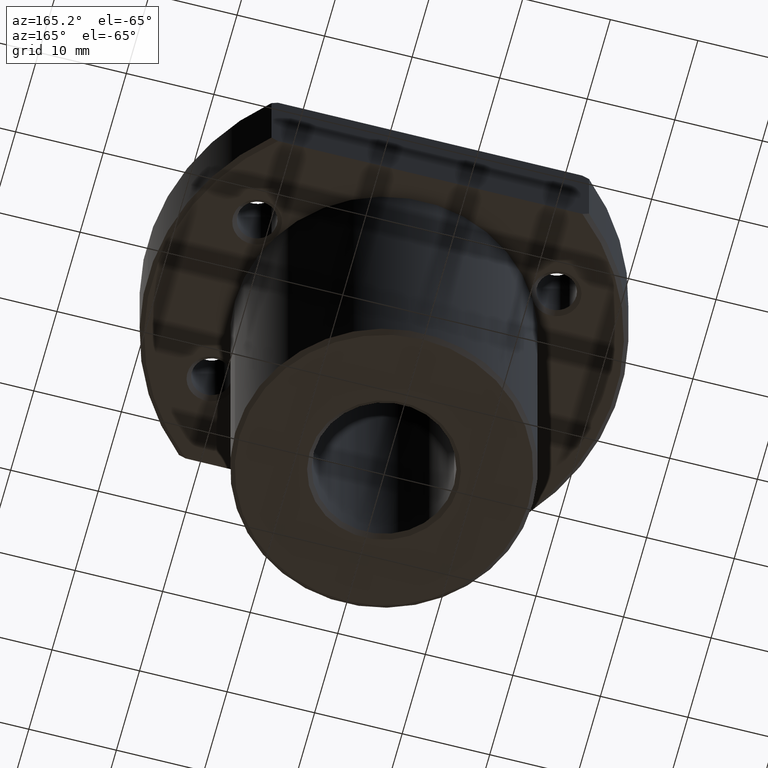
[diagram: clean part render]
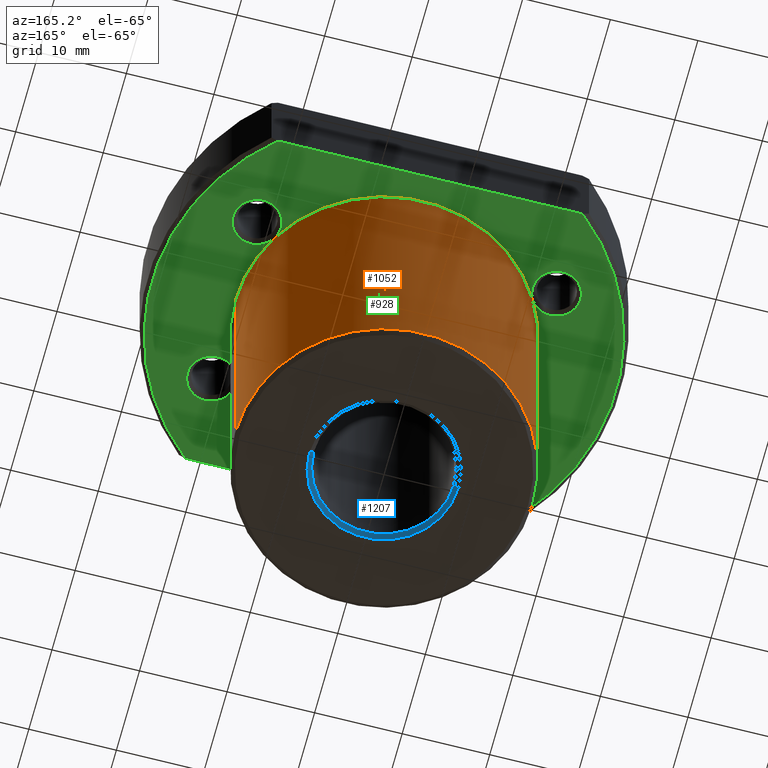
[diagram: same view with three faces highlighted in distinct colors, each labeled with its STEP entity id]
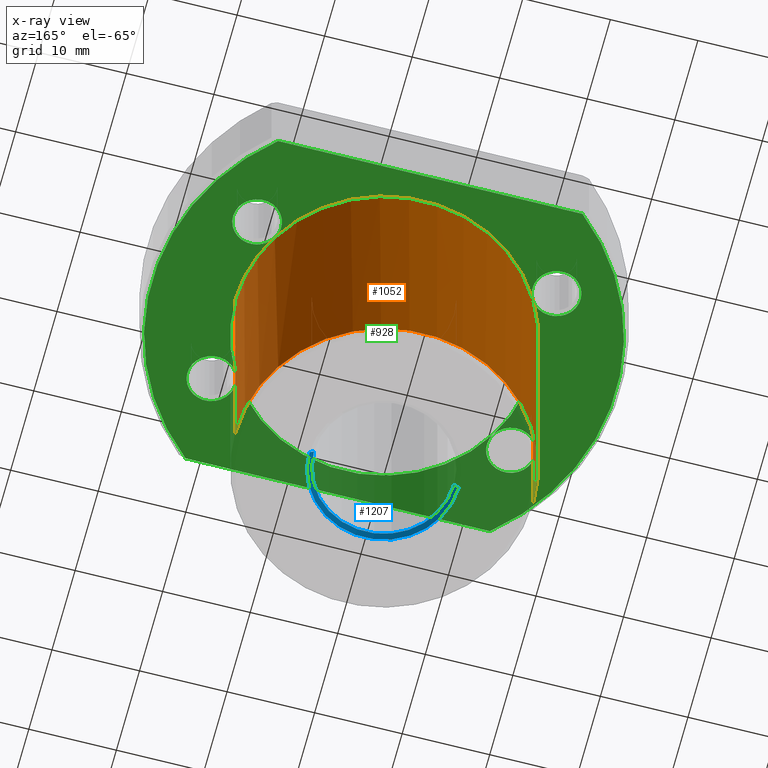
[diagram: x-ray of the same camera — body ghosted, the three highlighted faces saturated]
A machine part, auxiliary view with three faces highlighted in distinct colors.
The next image is the same camera in x-ray (body ghosted, the three faces saturated) — at least one of them is partly hidden behind the body in this view.
Their STEP definitions:

[orange] entity #1052 — the highlighted cylindrical surface (partial cylindrical patch) has radius 17 mm, axis along (0, 0, 1).
#880=AXIS2_PLACEMENT_3D('Circle Axis2P3D',#878,#879,$) ;
#904=AXIS2_PLACEMENT_3D('Circle Axis2P3D',#902,#903,$) ;
#909=AXIS2_PLACEMENT_3D('Circle Axis2P3D',#907,#908,$) ;
#1023=AXIS2_PLACEMENT_3D('Cylinder Axis2P3D',#1020,#1021,#1022) ;
#1041=AXIS2_PLACEMENT_3D('Circle Axis2P3D',#1039,#1040,$) ;
#57=CARTESIAN_POINT('Vertex',(-14.7224318643,8.5,35.)) ;
#210=CARTESIAN_POINT('Vertex',(14.7224318643,8.5,35.)) ;
#878=CARTESIAN_POINT('Axis2P3D Location',(0.,0.,35.)) ;
#882=CARTESIAN_POINT('Vertex',(-17.,2.0818308015E-015,35.)) ;
#899=CARTESIAN_POINT('Vertex',(17.,0.,35.)) ;
#902=CARTESIAN_POINT('Axis2P3D Location',(0.,0.,35.)) ;
#907=CARTESIAN_POINT('Axis2P3D Location',(0.,0.,35.)) ;
#1020=CARTESIAN_POINT('Axis2P3D Location',(0.,0.,17.5)) ;
#1025=CARTESIAN_POINT('Line Origine',(-17.,2.0818308015E-015,17.5)) ;
#1029=CARTESIAN_POINT('Vertex',(-17.,2.0818308015E-015,0.5)) ;
#1032=CARTESIAN_POINT('Line Origine',(17.,0.,17.5)) ;
#1036=CARTESIAN_POINT('Vertex',(17.,-4.163661603E-015,0.5)) ;
#1039=CARTESIAN_POINT('Axis2P3D Location',(0.,0.,0.5)) ;
#879=DIRECTION('Axis2P3D Direction',(0.,0.,1.)) ;
#903=DIRECTION('Axis2P3D Direction',(0.,0.,1.)) ;
#908=DIRECTION('Axis2P3D Direction',(0.,0.,1.)) ;
#1021=DIRECTION('Axis2P3D Direction',(0.,0.,1.)) ;
#1022=DIRECTION('Axis2P3D XDirection',(1.,0.,0.)) ;
#1026=DIRECTION('Vector Direction',(0.,0.,1.)) ;
#1033=DIRECTION('Vector Direction',(0.,0.,1.)) ;
#1040=DIRECTION('Axis2P3D Direction',(0.,0.,1.)) ;
#1027=VECTOR('Line Direction',#1026,1.) ;
#1034=VECTOR('Line Direction',#1033,1.) ;
#1045=ORIENTED_EDGE('',*,*,#1031,.T.) ;
#1046=ORIENTED_EDGE('',*,*,#884,.F.) ;
#1047=ORIENTED_EDGE('',*,*,#911,.F.) ;
#1048=ORIENTED_EDGE('',*,*,#906,.F.) ;
#1049=ORIENTED_EDGE('',*,*,#1038,.F.) ;
#1050=ORIENTED_EDGE('',*,*,#1043,.T.) ;
#1052=ADVANCED_FACE('',(#1051),#1024,.T.) ;
#881=CIRCLE('generated circle',#880,17.) ;
#905=CIRCLE('generated circle',#904,17.) ;
#910=CIRCLE('generated circle',#909,17.) ;
#1042=CIRCLE('generated circle',#1041,17.) ;
#1024=CYLINDRICAL_SURFACE('generated cylinder',#1023,17.) ;
#884=EDGE_CURVE('',#58,#883,#881,.T.) ;
#906=EDGE_CURVE('',#900,#211,#905,.T.) ;
#911=EDGE_CURVE('',#211,#58,#910,.T.) ;
#1031=EDGE_CURVE('',#1030,#883,#1028,.T.) ;
#1038=EDGE_CURVE('',#1037,#900,#1035,.T.) ;
#1043=EDGE_CURVE('',#1037,#1030,#1042,.T.) ;
#1044=EDGE_LOOP('',(#1045,#1046,#1047,#1048,#1049,#1050)) ;
#1051=FACE_OUTER_BOUND('',#1044,.T.) ;
#1028=LINE('Line',#1025,#1027) ;
#1035=LINE('Line',#1032,#1034) ;
#58=VERTEX_POINT('',#57) ;
#211=VERTEX_POINT('',#210) ;
#883=VERTEX_POINT('',#882) ;
#900=VERTEX_POINT('',#899) ;
#1030=VERTEX_POINT('',#1029) ;
#1037=VERTEX_POINT('',#1036) ;

[blue] entity #1207 — the highlighted conical surface has half-angle 45 deg.
#1148=AXIS2_PLACEMENT_3D('Circle Axis2P3D',#1146,#1147,$) ;
#1169=AXIS2_PLACEMENT_3D('Circle Axis2P3D',#1167,#1168,$) ;
#1189=AXIS2_PLACEMENT_3D('Cone Axis2P3D',#1186,#1187,#1188) ;
#1124=CARTESIAN_POINT('Vertex',(8.,-1.95937016612E-015,0.5)) ;
#1126=CARTESIAN_POINT('Vertex',(-8.,9.79685083058E-016,0.5)) ;
#1146=CARTESIAN_POINT('Axis2P3D Location',(0.,0.,0.5)) ;
#1167=CARTESIAN_POINT('Axis2P3D Location',(1.7763568394E-015,4.4408920985E-016,0.)) ;
#1171=CARTESIAN_POINT('Vertex',(-8.5,1.51718430416E-007,0.)) ;
#1173=CARTESIAN_POINT('Vertex',(8.5,-1.63774159165E-015,0.)) ;
#1186=CARTESIAN_POINT('Axis2P3D Location',(-1.04836317973E-016,0.,8.5)) ;
#1191=CARTESIAN_POINT('Line Origine',(-8.25,-4.4408920985E-016,0.25)) ;
#1196=CARTESIAN_POINT('Line Origine',(8.25,4.4408920985E-016,0.25)) ;
#1147=DIRECTION('Axis2P3D Direction',(0.,0.,1.)) ;
#1168=DIRECTION('Axis2P3D Direction',(0.,0.,1.)) ;
#1187=DIRECTION('Axis2P3D Direction',(-5.95641108643E-017,0.,-1.)) ;
#1188=DIRECTION('Axis2P3D XDirection',(-0.941921492107,0.335833147123,0.)) ;
#1192=DIRECTION('Vector Direction',(-0.707106781187,-1.25607396695E-015,-0.707106781187)) ;
#1197=DIRECTION('Vector Direction',(0.707106781187,1.25607396695E-015,-0.707106781187)) ;
#1193=VECTOR('Line Direction',#1192,1.) ;
#1198=VECTOR('Line Direction',#1197,1.) ;
#1202=ORIENTED_EDGE('',*,*,#1195,.T.) ;
#1203=ORIENTED_EDGE('',*,*,#1150,.T.) ;
#1204=ORIENTED_EDGE('',*,*,#1200,.F.) ;
#1205=ORIENTED_EDGE('',*,*,#1175,.F.) ;
#1207=ADVANCED_FACE('',(#1206),#1190,.F.) ;
#1149=CIRCLE('generated circle',#1148,8.) ;
#1170=CIRCLE('generated circle',#1169,8.5) ;
#1190=CONICAL_SURFACE('Cone',#1189,0.,0.785398163397) ;
#1150=EDGE_CURVE('',#1127,#1125,#1149,.T.) ;
#1175=EDGE_CURVE('',#1172,#1174,#1170,.T.) ;
#1195=EDGE_CURVE('',#1172,#1127,#1194,.F.) ;
#1200=EDGE_CURVE('',#1174,#1125,#1199,.F.) ;
#1201=EDGE_LOOP('',(#1202,#1203,#1204,#1205)) ;
#1206=FACE_OUTER_BOUND('',#1201,.T.) ;
#1194=LINE('Line',#1191,#1193) ;
#1199=LINE('Line',#1196,#1198) ;
#1125=VERTEX_POINT('',#1124) ;
#1127=VERTEX_POINT('',#1126) ;
#1172=VERTEX_POINT('',#1171) ;
#1174=VERTEX_POINT('',#1173) ;

[green] entity #928 — the highlighted planar face has unit normal (0, 0, 1).
#62=AXIS2_PLACEMENT_3D('Circle Axis2P3D',#60,#61,$) ;
#84=AXIS2_PLACEMENT_3D('Circle Axis2P3D',#82,#83,$) ;
#215=AXIS2_PLACEMENT_3D('Circle Axis2P3D',#213,#214,$) ;
#237=AXIS2_PLACEMENT_3D('Circle Axis2P3D',#235,#236,$) ;
#368=AXIS2_PLACEMENT_3D('Circle Axis2P3D',#366,#367,$) ;
#390=AXIS2_PLACEMENT_3D('Circle Axis2P3D',#388,#389,$) ;
#521=AXIS2_PLACEMENT_3D('Circle Axis2P3D',#519,#520,$) ;
#543=AXIS2_PLACEMENT_3D('Circle Axis2P3D',#541,#542,$) ;
#740=AXIS2_PLACEMENT_3D('Circle Axis2P3D',#738,#739,$) ;
#851=AXIS2_PLACEMENT_3D('Plane Axis2P3D',#848,#849,#850) ;
#855=AXIS2_PLACEMENT_3D('Circle Axis2P3D',#853,#854,$) ;
#880=AXIS2_PLACEMENT_3D('Circle Axis2P3D',#878,#879,$) ;
#887=AXIS2_PLACEMENT_3D('Circle Axis2P3D',#885,#886,$) ;
#892=AXIS2_PLACEMENT_3D('Circle Axis2P3D',#890,#891,$) ;
#897=AXIS2_PLACEMENT_3D('Circle Axis2P3D',#895,#896,$) ;
#904=AXIS2_PLACEMENT_3D('Circle Axis2P3D',#902,#903,$) ;
#909=AXIS2_PLACEMENT_3D('Circle Axis2P3D',#907,#908,$) ;
#41=CARTESIAN_POINT('Vertex',(-19.4855715803,11.2500000085,35.)) ;
#57=CARTESIAN_POINT('Vertex',(-14.7224318643,8.5,35.)) ;
#60=CARTESIAN_POINT('Axis2P3D Location',(-17.1040017247,9.875,35.)) ;
#82=CARTESIAN_POINT('Axis2P3D Location',(-17.1040017247,9.875,35.)) ;
#194=CARTESIAN_POINT('Vertex',(19.48557159,11.2499999915,35.)) ;
#210=CARTESIAN_POINT('Vertex',(14.7224318643,8.5,35.)) ;
#213=CARTESIAN_POINT('Axis2P3D Location',(17.1040017247,9.875,35.)) ;
#235=CARTESIAN_POINT('Axis2P3D Location',(17.1040017247,9.875,35.)) ;
#347=CARTESIAN_POINT('Vertex',(19.4855715803,-11.2500000085,35.)) ;
#363=CARTESIAN_POINT('Vertex',(14.7224318643,-8.5,35.)) ;
#366=CARTESIAN_POINT('Axis2P3D Location',(17.1040017247,-9.875,35.)) ;
#388=CARTESIAN_POINT('Axis2P3D Location',(17.1040017247,-9.875,35.)) ;
#500=CARTESIAN_POINT('Vertex',(-19.48557159,-11.2499999915,35.)) ;
#516=CARTESIAN_POINT('Vertex',(-14.7224318643,-8.5,35.)) ;
#519=CARTESIAN_POINT('Axis2P3D Location',(-17.1040017247,-9.875,35.)) ;
#541=CARTESIAN_POINT('Axis2P3D Location',(-17.1040017247,-9.875,35.)) ;
#727=CARTESIAN_POINT('Vertex',(17.3853386507,20.,35.)) ;
#735=CARTESIAN_POINT('Vertex',(17.3853386507,-20.,35.)) ;
#738=CARTESIAN_POINT('Axis2P3D Location',(-3.5527136788E-015,2.18640584506E-015,35.)) ;
#848=CARTESIAN_POINT('Axis2P3D Location',(0.,0.,35.)) ;
#853=CARTESIAN_POINT('Axis2P3D Location',(-7.1054273576E-015,-2.58813730639E-015,35.)) ;
#857=CARTESIAN_POINT('Vertex',(-17.3853386507,20.,35.)) ;
#859=CARTESIAN_POINT('Vertex',(-17.3853386507,-20.,35.)) ;
#862=CARTESIAN_POINT('Line Origine',(0.,20.,35.)) ;
#867=CARTESIAN_POINT('Line Origine',(-7.1054273576E-015,-20.,35.)) ;
#878=CARTESIAN_POINT('Axis2P3D Location',(0.,0.,35.)) ;
#882=CARTESIAN_POINT('Vertex',(-17.,2.0818308015E-015,35.)) ;
#885=CARTESIAN_POINT('Axis2P3D Location',(0.,0.,35.)) ;
#890=CARTESIAN_POINT('Axis2P3D Location',(0.,0.,35.)) ;
#895=CARTESIAN_POINT('Axis2P3D Location',(0.,0.,35.)) ;
#899=CARTESIAN_POINT('Vertex',(17.,0.,35.)) ;
#902=CARTESIAN_POINT('Axis2P3D Location',(0.,0.,35.)) ;
#907=CARTESIAN_POINT('Axis2P3D Location',(0.,0.,35.)) ;
#61=DIRECTION('Axis2P3D Direction',(1.18921396731E-013,9.42049825527E-014,1.)) ;
#83=DIRECTION('Axis2P3D Direction',(0.,0.,1.)) ;
#214=DIRECTION('Axis2P3D Direction',(2.23142310953E-014,-1.51387396639E-013,1.)) ;
#236=DIRECTION('Axis2P3D Direction',(0.,0.,1.)) ;
#367=DIRECTION('Axis2P3D Direction',(-1.20650606498E-013,-9.5574796399E-014,1.)) ;
#389=DIRECTION('Axis2P3D Direction',(1.53837014911E-015,2.6645352591E-015,1.)) ;
#520=DIRECTION('Axis2P3D Direction',(-2.23142310953E-014,1.51387396639E-013,1.)) ;
#542=DIRECTION('Axis2P3D Direction',(0.,0.,1.)) ;
#739=DIRECTION('Axis2P3D Direction',(2.73260510366E-015,-5.72219949474E-015,1.)) ;
#849=DIRECTION('Axis2P3D Direction',(0.,0.,1.)) ;
#850=DIRECTION('Axis2P3D XDirection',(1.,0.,0.)) ;
#854=DIRECTION('Axis2P3D Direction',(0.,0.,1.)) ;
#863=DIRECTION('Vector Direction',(1.,0.,0.)) ;
#868=DIRECTION('Vector Direction',(1.,0.,0.)) ;
#879=DIRECTION('Axis2P3D Direction',(0.,0.,1.)) ;
#886=DIRECTION('Axis2P3D Direction',(0.,0.,1.)) ;
#891=DIRECTION('Axis2P3D Direction',(0.,0.,1.)) ;
#896=DIRECTION('Axis2P3D Direction',(0.,0.,1.)) ;
#903=DIRECTION('Axis2P3D Direction',(0.,0.,1.)) ;
#908=DIRECTION('Axis2P3D Direction',(0.,0.,1.)) ;
#864=VECTOR('Line Direction',#863,1.) ;
#869=VECTOR('Line Direction',#868,1.) ;
#873=ORIENTED_EDGE('',*,*,#861,.F.) ;
#874=ORIENTED_EDGE('',*,*,#866,.F.) ;
#875=ORIENTED_EDGE('',*,*,#742,.F.) ;
#876=ORIENTED_EDGE('',*,*,#871,.F.) ;
#913=ORIENTED_EDGE('',*,*,#884,.T.) ;
#914=ORIENTED_EDGE('',*,*,#889,.T.) ;
#915=ORIENTED_EDGE('',*,*,#545,.T.) ;
#916=ORIENTED_EDGE('',*,*,#523,.T.) ;
#917=ORIENTED_EDGE('',*,*,#894,.T.) ;
#918=ORIENTED_EDGE('',*,*,#392,.T.) ;
#919=ORIENTED_EDGE('',*,*,#370,.T.) ;
#920=ORIENTED_EDGE('',*,*,#901,.T.) ;
#921=ORIENTED_EDGE('',*,*,#906,.T.) ;
#922=ORIENTED_EDGE('',*,*,#239,.T.) ;
#923=ORIENTED_EDGE('',*,*,#217,.T.) ;
#924=ORIENTED_EDGE('',*,*,#911,.T.) ;
#925=ORIENTED_EDGE('',*,*,#86,.T.) ;
#926=ORIENTED_EDGE('',*,*,#64,.T.) ;
#927=FACE_BOUND('',#912,.T.) ;
#928=ADVANCED_FACE('',(#877,#927),#852,.F.) ;
#63=CIRCLE('generated circle',#62,2.75) ;
#85=CIRCLE('generated circle',#84,2.75) ;
#216=CIRCLE('generated circle',#215,2.75) ;
#238=CIRCLE('generated circle',#237,2.75) ;
#369=CIRCLE('generated circle',#368,2.75) ;
#391=CIRCLE('generated circle',#390,2.75) ;
#522=CIRCLE('generated circle',#521,2.75) ;
#544=CIRCLE('generated circle',#543,2.75) ;
#741=CIRCLE('generated circle',#740,26.5) ;
#856=CIRCLE('generated circle',#855,26.5) ;
#881=CIRCLE('generated circle',#880,17.) ;
#888=CIRCLE('generated circle',#887,17.) ;
#893=CIRCLE('generated circle',#892,17.) ;
#898=CIRCLE('generated circle',#897,17.) ;
#905=CIRCLE('generated circle',#904,17.) ;
#910=CIRCLE('generated circle',#909,17.) ;
#64=EDGE_CURVE('',#42,#58,#63,.T.) ;
#86=EDGE_CURVE('',#58,#42,#85,.T.) ;
#217=EDGE_CURVE('',#195,#211,#216,.T.) ;
#239=EDGE_CURVE('',#211,#195,#238,.T.) ;
#370=EDGE_CURVE('',#348,#364,#369,.T.) ;
#392=EDGE_CURVE('',#364,#348,#391,.T.) ;
#523=EDGE_CURVE('',#501,#517,#522,.T.) ;
#545=EDGE_CURVE('',#517,#501,#544,.T.) ;
#742=EDGE_CURVE('',#736,#728,#741,.T.) ;
#861=EDGE_CURVE('',#858,#860,#856,.T.) ;
#866=EDGE_CURVE('',#728,#858,#865,.F.) ;
#871=EDGE_CURVE('',#860,#736,#870,.T.) ;
#884=EDGE_CURVE('',#58,#883,#881,.T.) ;
#889=EDGE_CURVE('',#883,#517,#888,.T.) ;
#894=EDGE_CURVE('',#517,#364,#893,.T.) ;
#901=EDGE_CURVE('',#364,#900,#898,.T.) ;
#906=EDGE_CURVE('',#900,#211,#905,.T.) ;
#911=EDGE_CURVE('',#211,#58,#910,.T.) ;
#872=EDGE_LOOP('',(#873,#874,#875,#876)) ;
#912=EDGE_LOOP('',(#913,#914,#915,#916,#917,#918,#919,#920,#921,#922,#923,#924,#925,#926)) ;
#877=FACE_OUTER_BOUND('',#872,.T.) ;
#865=LINE('Line',#862,#864) ;
#870=LINE('Line',#867,#869) ;
#852=PLANE('Plane',#851) ;
#42=VERTEX_POINT('',#41) ;
#58=VERTEX_POINT('',#57) ;
#195=VERTEX_POINT('',#194) ;
#211=VERTEX_POINT('',#210) ;
#348=VERTEX_POINT('',#347) ;
#364=VERTEX_POINT('',#363) ;
#501=VERTEX_POINT('',#500) ;
#517=VERTEX_POINT('',#516) ;
#728=VERTEX_POINT('',#727) ;
#736=VERTEX_POINT('',#735) ;
#858=VERTEX_POINT('',#857) ;
#860=VERTEX_POINT('',#859) ;
#883=VERTEX_POINT('',#882) ;
#900=VERTEX_POINT('',#899) ;